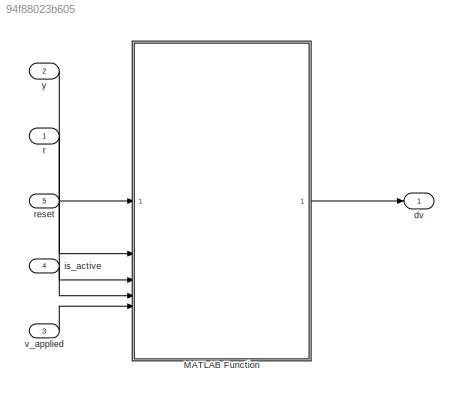
MODEL slx_94f88023b605
KIND model
CONFIG AbsTol = auto
CONFIG EnableMultiTasking = off
CONFIG FixedStep = Ts_local
CONFIG MaxStep = auto
CONFIG MinStep = auto
CONFIG RelTol = 1e-3
CONFIG SampleTimeConstraint = Unconstrained
CONFIG SolverName = ode14x
CONFIG StartTime = 0.0
CONFIG StopTime = 10.0
WORKSPACE source: mxarray member
WORKSPACE A = [0.767863447898 0.136621369956 -0.0579918244366 0.00351785054457 -0.173261008918 0.0195172138854 -0.026700807124 -0.252902224756 0.0852923556475 -0.174992198553 -0.163679287597 0.0968171615937 ... (144 elements, 12x12)]
WORKSPACE B = [-0.239546034895 0.229075350499 -1.13306251443 0.425486805509 -0.0485844193133 -0.769634425081 0.181827955973 -0.713707158202 -0.901044245304 -0.266912302431 -0.564221800222 0.039197803056 ... (36 elements, 12x3)]
WORKSPACE C = [9.20395376389e-05 0.000372232096796 -0.000972476619753 0.000488912383845 0.000565996495988 -0.000189793364539 0.000141931842902 -0.000646274875124 0.000585937620655 0.00212803249032 -0.00408223707237 0.000776497605076 ... (36 elements, 3x12)]
WORKSPACE D = [0 0 0 0 0 0 0 0 0]
WORKSPACE L = [-5.95498130129 184.764776772 -19.8236507959 109.485755166 15.1209233198 -76.3319214472 -13.7695231234 -187.901356877 103.721479025 74.8199792018 -129.445658825 32.44250738 ... (36 elements, 12x3)]
WORKSPACE N1 = 1
WORKSPACE N2 = 40
WORKSPACE Nu = 10
WORKSPACE alpha = [0.2 0.2 0.2]
WORKSPACE du_init = [0 0 0]
WORKSPACE dumax = [inf inf inf]
WORKSPACE dumin = [-inf -inf -inf]
WORKSPACE lam = [1 1 1]
WORKSPACE solve_when_inactive = 0
WORKSPACE u_init = [0 0 0]
WORKSPACE umax = [0.1579 0.1579 0.1579]
WORKSPACE umin = [-0.3612 -0.3612 -0.3612]
WORKSPACE use_quadprog = 1
WORKSPACE wy = [0.5 0.5 0.5]
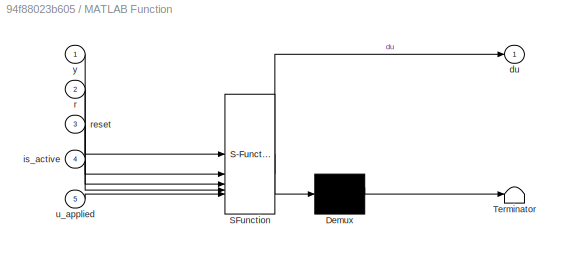
BLOCK [SubSystem] MATLAB Function
  ErrorFcn = Stateflow.Translate.translate
  PermitHierarchicalResolution = ExplicitOnly
  SFBlockType = MATLAB Function
  SystemSampleTime = Ts_ctrl
  TreatAsAtomicUnit = on
BLOCK [Demux] MATLAB Function/ Demux 
  Outputs = 1
BLOCK [S-Function] MATLAB Function/ SFunction 
  EnableBusSupport = off
  FunctionName = sf_sfun
  Parameters = A,B,C,D,L,N1,N2,Nu,alpha,du_init,dumax,dumin,lam,solve_when_inactive,u_init,umax,umin,use_quadprog,wy
  PortCounts = [5 2]
  SFcnIsStateOwnerBlock = off
  SFunctionDeploymentMode = off
  Tag = Stateflow S-Function 2
BLOCK [Terminator] MATLAB Function/ Terminator 
BLOCK [Outport] MATLAB Function/du
BLOCK [Inport] MATLAB Function/is_active
  Port = 4
BLOCK [Inport] MATLAB Function/r
  Port = 2
BLOCK [Inport] MATLAB Function/reset
  Port = 3
BLOCK [Inport] MATLAB Function/u_applied
  Port = 5
BLOCK [Inport] MATLAB Function/y
BLOCK [Outport] dv
BLOCK [Inport] is_active
  NameLocation = left
  Port = 4
BLOCK [Inport] r
  NameLocation = left
BLOCK [Inport] reset
  NameLocation = left
  Port = 5
BLOCK [Inport] v_applied
  NameLocation = left
  Port = 3
BLOCK [Inport] y
  NameLocation = left
  Port = 2
LINE MATLAB Function:1 -> dv:1
LINE is_active:1 -> MATLAB Function:4
LINE r:1 -> MATLAB Function:2
LINE reset:1 -> MATLAB Function:3
LINE v_applied:1 -> MATLAB Function:5
LINE y:1 -> MATLAB Function:1
CHART MATLAB Function states=1 transitions=1
  STATE_LABEL 'eML_blk_kernel()'
  STATE_LABEL 'SCRIPT:\nfunction du = MPC_QP(y, r, A, B, N1, N2, Nu, alpha, lam, reset, ...\n                    C, D, wy, umin, umax, dumin, dumax, u_init, du_init, ...\n                    L, use_quadprog, is_active, u_applied, solve_when_inactive)\n%MPC_QP Constrained MPC wrapper with optional supervisor inputs.\n%   This wrapper preserves the public MATLAB entry point and delegates the\n%   implementation to MPC_Q...<+2250ch>'
CHART  states=0 transitions=0
